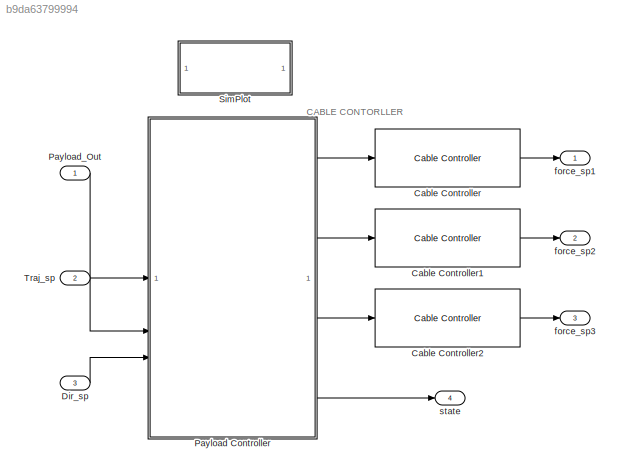
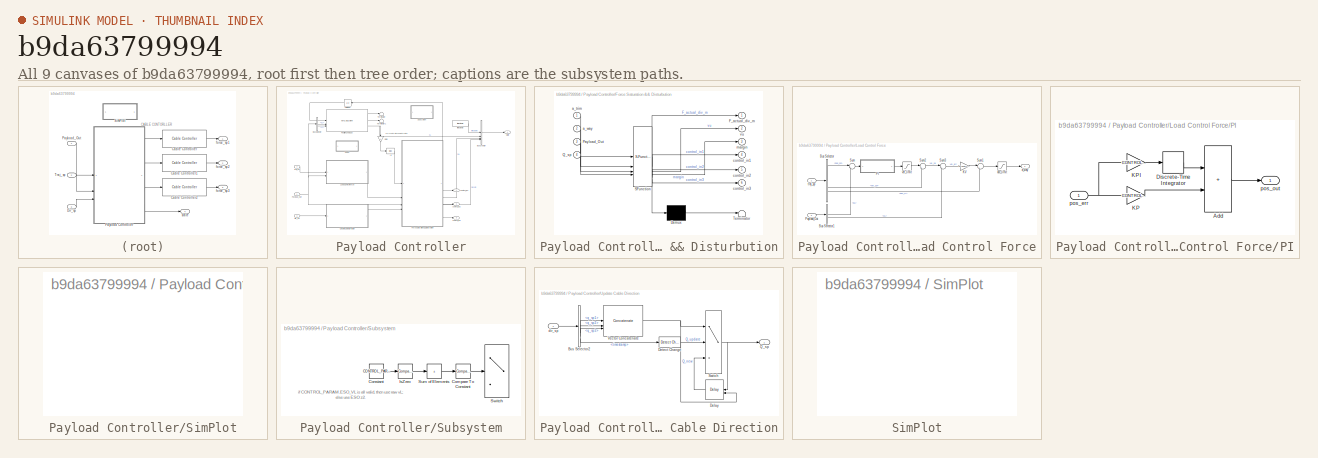
[diagram: thumbnail index - all 9 canvases of the model, root first then tree order]
MODEL slx_b9da63799994
KIND model
BLOCK [Reference] Cable Controller  REF=mqlib/Cable Controller  (lib defined in slx_e55b6aeabbfa)
  SourceBlock = mqlib/Cable Controller
BLOCK [Reference] Cable Controller1  REF=mqlib/Cable Controller  (lib defined in slx_e55b6aeabbfa)
  SourceBlock = mqlib/Cable Controller
BLOCK [Reference] Cable Controller2  REF=mqlib/Cable Controller  (lib defined in slx_e55b6aeabbfa)
  SourceBlock = mqlib/Cable Controller
BLOCK [Inport] Dir_sp
  OutDataTypeStr = Bus: DirCmd_In_Bus
  Port = 3
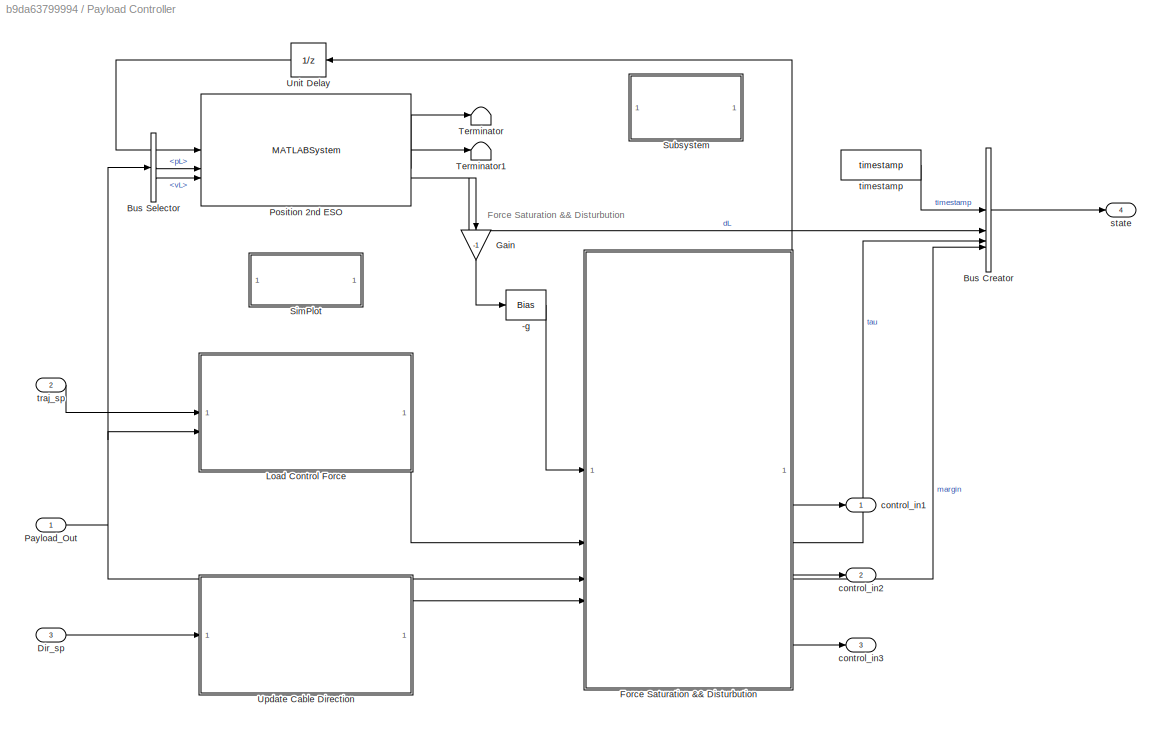
BLOCK [SubSystem] Payload Controller
BLOCK [Bias] Payload Controller/-g
  Bias = [0;0;-CONTROL_CONST.g]
  SaturateOnIntegerOverflow = off
BLOCK [BusCreator] Payload Controller/Bus Creator
  DisplayOption = bar
  InheritFromInputs = on
  Inputs = 4
  OutDataTypeStr = Bus: Control_State_Bus
BLOCK [BusSelector] Payload Controller/Bus Selector
  OutputSignals = pL,vL
BLOCK [Inport] Payload Controller/Dir_sp
  Port = 3
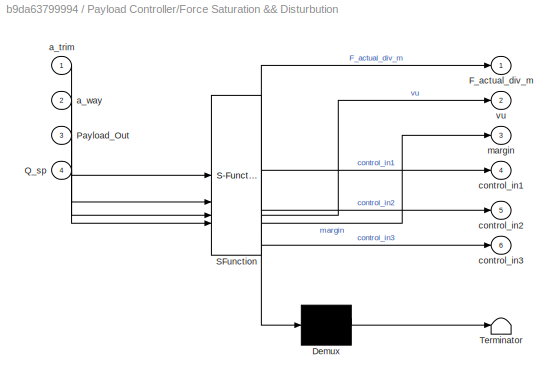
BLOCK [SubSystem] Payload Controller/Force Saturation && Disturbution
  ErrorFcn = Stateflow.Translate.translate
  PermitHierarchicalResolution = ExplicitOnly
  SFBlockType = MATLAB Function
  TreatAsAtomicUnit = on
BLOCK [Demux] Payload Controller/Force Saturation && Disturbution/ Demux 
  Outputs = 1
BLOCK [S-Function] Payload Controller/Force Saturation && Disturbution/ SFunction 
  EnableBusSupport = on
  FunctionName = sf_sfun
  Parameters = li,mL,max_tension,min_tension
  PortCounts = [4 7]
  SFcnIsStateOwnerBlock = off
  SFunctionDeploymentMode = off
  Tag = Stateflow S-Function 1
BLOCK [Terminator] Payload Controller/Force Saturation && Disturbution/ Terminator 
BLOCK [Outport] Payload Controller/Force Saturation && Disturbution/F_actual_div_m
BLOCK [Inport] Payload Controller/Force Saturation && Disturbution/Payload_Out
  Port = 3
BLOCK [Inport] Payload Controller/Force Saturation && Disturbution/Q_sp
  Port = 4
BLOCK [Inport] Payload Controller/Force Saturation && Disturbution/a_trim
BLOCK [Inport] Payload Controller/Force Saturation && Disturbution/a_way
  Port = 2
BLOCK [Outport] Payload Controller/Force Saturation && Disturbution/control_in1
  Port = 4
BLOCK [Outport] Payload Controller/Force Saturation && Disturbution/control_in2
  Port = 5
BLOCK [Outport] Payload Controller/Force Saturation && Disturbution/control_in3
  Port = 6
BLOCK [Outport] Payload Controller/Force Saturation && Disturbution/margin
  Port = 3
BLOCK [Outport] Payload Controller/Force Saturation && Disturbution/vu
  Port = 2
BLOCK [Gain] Payload Controller/Gain
  Gain = -1
  NameLocation = left
BLOCK [SubSystem] Payload Controller/Load Control Force
BLOCK [BusSelector] Payload Controller/Load Control Force/Bus Selector
  OutputSignals = pos_sp,vel_sp,acc_ff
BLOCK [BusSelector] Payload Controller/Load Control Force/Bus Selector1
  OutputSignals = pL,vL
BLOCK [Gain] Payload Controller/Load Control Force/KV
  Gain = CONTROL_PARAM.KV
BLOCK [SubSystem] Payload Controller/Load Control Force/PI
BLOCK [Sum] Payload Controller/Load Control Force/PI/Add
  IconShape = rectangular
BLOCK [DiscreteIntegrator] Payload Controller/Load Control Force/PI/Discrete-Time Integrator
  ICPrevOutput = DiscIntNeverNeededParam
  ICPrevScaledInput = DiscIntNeverNeededParam
  InitialConditionSetting = Auto
  SampleTime = -1
  gainval = 1
BLOCK [Gain] Payload Controller/Load Control Force/PI/KP
  Gain = CONTROL_PARAM.KP
BLOCK [Gain] Payload Controller/Load Control Force/PI/KPI
  Gain = CONTROL_PARAM.KPI
BLOCK [Inport] Payload Controller/Load Control Force/PI/pos_err
BLOCK [Outport] Payload Controller/Load Control Force/PI/pos_out
BLOCK [Inport] Payload Controller/Load Control Force/Payload_Out
  Port = 2
BLOCK [Sum] Payload Controller/Load Control Force/Sum
  Inputs = |+-
BLOCK [Sum] Payload Controller/Load Control Force/Sum1
  Inputs = |++
BLOCK [Sum] Payload Controller/Load Control Force/Sum2
  Inputs = |++
BLOCK [Sum] Payload Controller/Load Control Force/Sum3
  Inputs = |+-
BLOCK [Outport] Payload Controller/Load Control Force/a_way
BLOCK [Saturate] Payload Controller/Load Control Force/acc_limit
  LowerLimit = -3
  UpperLimit = 3
BLOCK [Inport] Payload Controller/Load Control Force/traj_sp
BLOCK [Saturate] Payload Controller/Load Control Force/vel_limit
  LowerLimit = -5
  UpperLimit = 5
BLOCK [Inport] Payload Controller/Payload_Out
BLOCK [MATLABSystem] Payload Controller/Position 2nd ESO
  K_p = CONTROL_PARAM.ESO_PL
  K_v = CONTROL_PARAM.ESO_VL
  MaskDisplay = disp('Position\n2nd Order ESO');\nport_label('input',1,'acc');\nport_label('input',2,'pos');\nport_label('input',3,'vel');\nport_label('output',1,'z1');\nport_label('output',2,'z2');\nport_label('output',3,'z3');
  MaskType = pos_2nd_eso
  SampleTime = -1
  SimulateUsing = Code generation
  System = pos_2nd_eso
BLOCK [SubSystem] Payload Controller/SimPlot
  OpenFcn = run('simplot.m');
BLOCK [SubSystem] Payload Controller/Subsystem
  Commented = on
BLOCK [Reference] Payload Controller/Subsystem/Compare To Constant  REF=simulink/Logic and Bit
Operations/Compare
To Constant
  Commented = on
  SourceBlock = simulink/Logic and Bit\nOperations/Compare\nTo Constant
  SourceType = Compare To Constant
BLOCK [Constant] Payload Controller/Subsystem/Constant
  Commented = on
  Value = CONTROL_PARAM.ESO_VL
BLOCK [Reference] Payload Controller/Subsystem/IsZero  REF=simulink/Logic and Bit
Operations/Compare
To Zero
  Commented = on
  LibrarySourceBlock = simulink/Quick Insert/Logic and Bit\nOperations/IsZero
  SourceBlock = simulink/Logic and Bit\nOperations/Compare\nTo Zero
  SourceType = Compare To Zero
BLOCK [Sum] Payload Controller/Subsystem/Sum of Elements
  Commented = on
  IconShape = rectangular
  Inputs = +
BLOCK [Switch] Payload Controller/Subsystem/Switch
  Commented = on
  Criteria = u2 > Threshold
  InputSameDT = off
  SaturateOnIntegerOverflow = off
BLOCK [Terminator] Payload Controller/Terminator
BLOCK [Terminator] Payload Controller/Terminator1
BLOCK [UnitDelay] Payload Controller/Unit Delay
  HasFrameUpgradeWarning = on
  NameLocation = top
  SampleTime = -1
BLOCK [SubSystem] Payload Controller/Update Cable Direction
BLOCK [BusSelector] Payload Controller/Update Cable Direction/Bus Selector2
  OutputSignals = q_sp1,q_sp2,q_sp3,timestamp
BLOCK [Delay] Payload Controller/Update Cable Direction/Delay
  DelayLength = 1
  InitialConditionSource = Input port
  InputPortMap = u0,p4
  NameLocation = top
BLOCK [Reference] Payload Controller/Update Cable Direction/Detect Change  REF=simulink/Logic and Bit
Operations/Detect
Change
  SourceBlock = simulink/Logic and Bit\nOperations/Detect\nChange
  SourceType = Detect Change
BLOCK [Outport] Payload Controller/Update Cable Direction/Q_sp
BLOCK [Switch] Payload Controller/Update Cable Direction/Switch
  Criteria = u2 ~= 0
  InputSameDT = off
  SaturateOnIntegerOverflow = off
BLOCK [Concatenate] Payload Controller/Update Cable Direction/Vector Concatenate
  ConcatenateDimension = 2
  Mode = Multidimensional array
  NumInputs = 3
BLOCK [Inport] Payload Controller/Update Cable Direction/dir_sp
BLOCK [Outport] Payload Controller/control_in1
BLOCK [Outport] Payload Controller/control_in2
  Port = 2
BLOCK [Outport] Payload Controller/control_in3
  Port = 3
BLOCK [Outport] Payload Controller/state
  Port = 4
BLOCK [Reference] Payload Controller/timestamp  REF=mqlib/timestamp  (lib defined in slx_e55b6aeabbfa)
  SourceBlock = mqlib/timestamp
BLOCK [Inport] Payload Controller/traj_sp
  Port = 2
BLOCK [Inport] Payload_Out
  OutDataTypeStr = Bus: Payload_Out_Bus
BLOCK [SubSystem] SimPlot
  OpenFcn = run('simplot.m');
BLOCK [Inport] Traj_sp
  OutDataTypeStr = Bus: TrajCmd_In_Bus
  Port = 2
BLOCK [Outport] force_sp1
  PortDimensions = 3
BLOCK [Outport] force_sp2
  Port = 2
  PortDimensions = 3
BLOCK [Outport] force_sp3
  Port = 3
  PortDimensions = 3
BLOCK [Outport] state
  OutDataTypeStr = Bus: Control_State_Bus
  Port = 4
ANNOTATION (root): CABLE CONTORLLER
ANNOTATION Payload Controller: Force Saturation && Disturbution
ANNOTATION Payload Controller/Subsystem: if CONTROL_PARAM.ESO_VL is all valid, then use raw vL; else use ESO z2.
LINE Cable Controller1:1 -> force_sp2:1
LINE Cable Controller2:1 -> force_sp3:1
LINE Cable Controller:1 -> force_sp1:1
LINE Dir_sp:1 -> Payload Controller:3
LINE Payload Controller/-g:1 -> Payload Controller/Force Saturation && Disturbution:1
LINE Payload Controller/Bus Creator:1 -> Payload Controller/state:1
LINE Payload Controller/Bus Selector:1 -> Payload Controller/Position 2nd ESO:2
LINE Payload Controller/Bus Selector:2 -> Payload Controller/Position 2nd ESO:3
LINE Payload Controller/Dir_sp:1 -> Payload Controller/Update Cable Direction:1
LINE Payload Controller/Force Saturation && Disturbution:1 -> Payload Controller/Unit Delay:1
LINE Payload Controller/Force Saturation && Disturbution:2 -> Payload Controller/Bus Creator:3
LINE Payload Controller/Force Saturation && Disturbution:3 -> Payload Controller/Bus Creator:4
LINE Payload Controller/Force Saturation && Disturbution:4 -> Payload Controller/control_in1:1
LINE Payload Controller/Force Saturation && Disturbution:5 -> Payload Controller/control_in2:1
LINE Payload Controller/Force Saturation && Disturbution:6 -> Payload Controller/control_in3:1
LINE Payload Controller/Gain:1 -> Payload Controller/-g:1
LINE Payload Controller/Load Control Force/Bus Selector1:1 -> Payload Controller/Load Control Force/Sum:2
LINE Payload Controller/Load Control Force/Bus Selector1:2 -> Payload Controller/Load Control Force/Sum3:2
LINE Payload Controller/Load Control Force/Bus Selector:1 -> Payload Controller/Load Control Force/Sum:1
LINE Payload Controller/Load Control Force/Bus Selector:2 -> Payload Controller/Load Control Force/Sum2:2
LINE Payload Controller/Load Control Force/Bus Selector:3 -> Payload Controller/Load Control Force/Sum1:2
LINE Payload Controller/Load Control Force/KV:1 -> Payload Controller/Load Control Force/Sum1:1
LINE Payload Controller/Load Control Force/PI/Add:1 -> Payload Controller/Load Control Force/PI/pos_out:1
LINE Payload Controller/Load Control Force/PI/Discrete-Time Integrator:1 -> Payload Controller/Load Control Force/PI/Add:1
LINE Payload Controller/Load Control Force/PI/KP:1 -> Payload Controller/Load Control Force/PI/Add:2
LINE Payload Controller/Load Control Force/PI/KPI:1 -> Payload Controller/Load Control Force/PI/Discrete-Time Integrator:1
NET Payload Controller/Load Control Force/PI/pos_err:1 -> Payload Controller/Load Control Force/PI/KP:1, Payload Controller/Load Control Force/PI/KPI:1
LINE Payload Controller/Load Control Force/PI:1 -> Payload Controller/Load Control Force/vel_limit:1
LINE Payload Controller/Load Control Force/Payload_Out:1 -> Payload Controller/Load Control Force/Bus Selector1:1
LINE Payload Controller/Load Control Force/Sum1:1 -> Payload Controller/Load Control Force/acc_limit:1
LINE Payload Controller/Load Control Force/Sum2:1 -> Payload Controller/Load Control Force/Sum3:1
LINE Payload Controller/Load Control Force/Sum3:1 -> Payload Controller/Load Control Force/KV:1
LINE Payload Controller/Load Control Force/Sum:1 -> Payload Controller/Load Control Force/PI:1
LINE Payload Controller/Load Control Force/acc_limit:1 -> Payload Controller/Load Control Force/a_way:1
LINE Payload Controller/Load Control Force/traj_sp:1 -> Payload Controller/Load Control Force/Bus Selector:1
LINE Payload Controller/Load Control Force/vel_limit:1 -> Payload Controller/Load Control Force/Sum2:1
LINE Payload Controller/Load Control Force:1 -> Payload Controller/Force Saturation && Disturbution:2
NET Payload Controller/Payload_Out:1 -> Payload Controller/Bus Selector:1, Payload Controller/Force Saturation && Disturbution:3, Payload Controller/Load Control Force:2
LINE Payload Controller/Position 2nd ESO:1 -> Payload Controller/Terminator:1
LINE Payload Controller/Position 2nd ESO:2 -> Payload Controller/Terminator1:1
NET Payload Controller/Position 2nd ESO:3 -> Payload Controller/Bus Creator:2, Payload Controller/Gain:1
LINE Payload Controller/Subsystem/Compare To Constant:1 -> Payload Controller/Subsystem/Switch:2
LINE Payload Controller/Subsystem/Constant:1 -> Payload Controller/Subsystem/IsZero:1
LINE Payload Controller/Subsystem/IsZero:1 -> Payload Controller/Subsystem/Sum of Elements:1
LINE Payload Controller/Subsystem/Sum of Elements:1 -> Payload Controller/Subsystem/Compare To Constant:1
LINE Payload Controller/Unit Delay:1 -> Payload Controller/Position 2nd ESO:1
LINE Payload Controller/Update Cable Direction/Bus Selector2:1 -> Payload Controller/Update Cable Direction/Vector Concatenate:1
LINE Payload Controller/Update Cable Direction/Bus Selector2:2 -> Payload Controller/Update Cable Direction/Vector Concatenate:2
LINE Payload Controller/Update Cable Direction/Bus Selector2:3 -> Payload Controller/Update Cable Direction/Vector Concatenate:3
LINE Payload Controller/Update Cable Direction/Bus Selector2:4 -> Payload Controller/Update Cable Direction/Detect Change:1
LINE Payload Controller/Update Cable Direction/Delay:1 -> Payload Controller/Update Cable Direction/Switch:3
LINE Payload Controller/Update Cable Direction/Detect Change:1 -> Payload Controller/Update Cable Direction/Switch:2
NET Payload Controller/Update Cable Direction/Switch:1 -> Payload Controller/Update Cable Direction/Delay:1, Payload Controller/Update Cable Direction/Q_sp:1
NET Payload Controller/Update Cable Direction/Vector Concatenate:1 -> Payload Controller/Update Cable Direction/Delay:2, Payload Controller/Update Cable Direction/Switch:1
LINE Payload Controller/Update Cable Direction/dir_sp:1 -> Payload Controller/Update Cable Direction/Bus Selector2:1
LINE Payload Controller/Update Cable Direction:1 -> Payload Controller/Force Saturation && Disturbution:4
LINE Payload Controller/timestamp:1 -> Payload Controller/Bus Creator:1
LINE Payload Controller/traj_sp:1 -> Payload Controller/Load Control Force:1
LINE Payload Controller:1 -> Cable Controller:1
LINE Payload Controller:2 -> Cable Controller1:1
LINE Payload Controller:3 -> Cable Controller2:1
LINE Payload Controller:4 -> state:1
LINE Payload_Out:1 -> Payload Controller:1
LINE Traj_sp:1 -> Payload Controller:2
note: NET lines group one-source signal fan-out (src -> all destinations, sorted); 1:1 wires keep LINE
CHART Payload Controller/Force Saturation && Disturbution states=1 transitions=1
  STATE_LABEL 'eML_blk_kernel()'
  STATE_LABEL 'SCRIPT:\nfunction [F_actual_div_m, vu, margin, control_in1, control_in2, control_in3] = fcn(a_trim, a_way, Payload_Out, Q_sp, li, max_tension, min_tension, mL)\n% id == 1\nq_1 = Payload_Out.pL - Payload_Out.p_1;\nq_1 = q_1 / norm(q_1);\nw_1 = cross(q_1, (Payload_Out.vL - Payload_Out.v_1) / li);\n\n% id == 2\nq_2 = Payload_Out.pL - Payload_Out.p_2;\nq_2 = q_2 / norm(q_2);\nw_2 = cross(q_2, (Payload_Out.vL - ...<+1277ch>'
CHART  states=0 transitions=0
